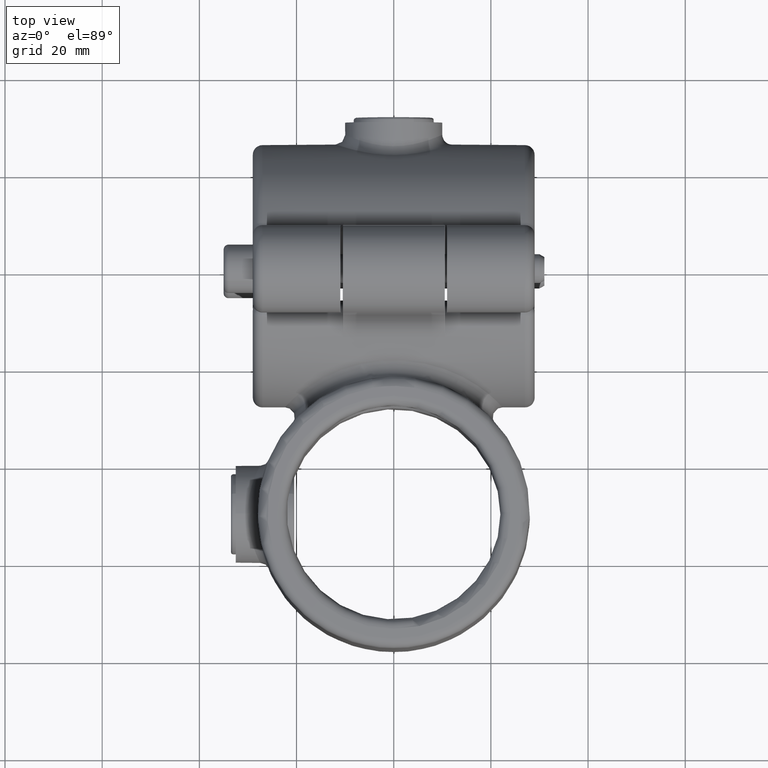
[diagram: clean part render]
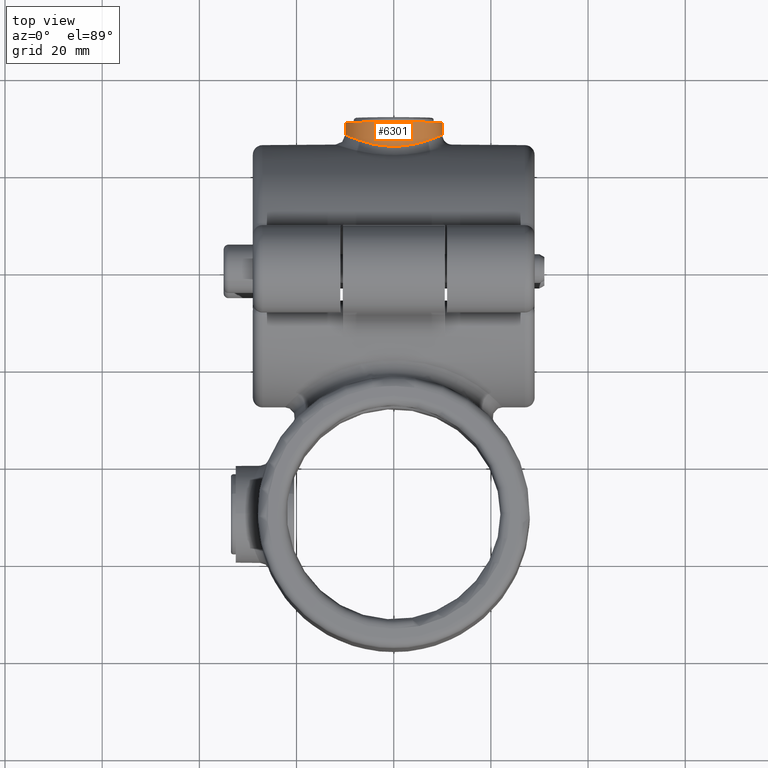
[diagram: same view with one face highlighted and labeled with its STEP entity id]
A machine part, top view. The second image highlights one B-rep face of the part: STEP entity #6301.
In plain terms, the highlighted cylindrical surface (bore or boss wall) has radius 10 mm, axis along (0, -1, -0).
Its self-contained STEP definition (entity closure, byte-faithful):
#8 = CARTESIAN_POINT ( 'NONE',  ( -1.309689247203252860, 37.96141784172954914, 9.919391606581415388 ) ) ;
#88 = CARTESIAN_POINT ( 'NONE',  ( 7.938441882792530713, 36.45113139752252351, -6.116101905805082950 ) ) ;
#119 = DIRECTION ( 'NONE',  ( 0.000000000000000000, 0.000000000000000000, -1.000000000000000000 ) ) ;
#272 = CARTESIAN_POINT ( 'NONE',  ( -6.109971697810090419, 37.09190805875401509, -7.922997076795366134 ) ) ;
#383 = CARTESIAN_POINT ( 'NONE',  ( 9.918017353368624001, 35.53821512939394722, 1.320967487975740040 ) ) ;
#524 = CARTESIAN_POINT ( 'NONE',  ( 7.300952535927495823, 36.69361664208202711, 6.841051327335551768 ) ) ;
#547 = CARTESIAN_POINT ( 'NONE',  ( 9.984147548416729023, 35.50378263958139513, 0.6548443001617316739 ) ) ;
#569 = CARTESIAN_POINT ( 'NONE',  ( 5.314964993036738861, 37.31605801563738822, 8.476805378456095497 ) ) ;
#596 = CARTESIAN_POINT ( 'NONE',  ( 9.868616851915183119, 35.56385626740684103, 1.648968644554943186 ) ) ;
#658 = VERTEX_POINT ( 'NONE', #3142 ) ;
#685 = CARTESIAN_POINT ( 'NONE',  ( 0.000000000000000000, 40.49999999999999289, 0.000000000000000000 ) ) ;
#708 = DIRECTION ( 'NONE',  ( 0.000000000000000000, 0.000000000000000000, 1.000000000000000000 ) ) ;
#917 = CARTESIAN_POINT ( 'NONE',  ( -2.300731756718716881, 37.87522249269908770, -9.737317023272751726 ) ) ;
#971 = CARTESIAN_POINT ( 'NONE',  ( -8.117739778073651991, 36.37533413609669708, 5.848589084603288413 ) ) ;
#1110 = CARTESIAN_POINT ( 'NONE',  ( -9.476407091836007268, 35.76316540894446661, 3.260847091560092448 ) ) ;
#1139 = CARTESIAN_POINT ( 'NONE',  ( 9.481509239164632064, 35.76064407785525390, 3.246023958078927851 ) ) ;
#1168 = CARTESIAN_POINT ( 'NONE',  ( 9.736752403789727950, 35.63130557728579362, -2.303334748292588774 ) ) ;
#1187 = CARTESIAN_POINT ( 'NONE',  ( -9.353615346467616831, 35.82158443888137356, -3.551940586607516881 ) ) ;
#1448 = CARTESIAN_POINT ( 'NONE',  ( -6.850330234620175318, 36.85317948182319014, -7.292221849752663410 ) ) ;
#1557 = CARTESIAN_POINT ( 'NONE',  ( -0.6722428627992788064, 38.00000000000000000, -9.999999999999998224 ) ) ;
#1581 = CARTESIAN_POINT ( 'NONE',  ( 7.931773140455636195, 36.45123628529891135, 6.098549542404117396 ) ) ;
#1717 = CARTESIAN_POINT ( 'NONE',  ( -4.446396089757007175, 37.52380741450293300, 8.963098138692679129 ) ) ;
#1749 = CARTESIAN_POINT ( 'NONE',  ( -9.102254187870251201, 35.94138236538182696, -4.153958435018672901 ) ) ;
#1774 = CARTESIAN_POINT ( 'NONE',  ( 9.460331332209944932, 35.76938803713622406, -3.257395336131244878 ) ) ;
#1797 = CARTESIAN_POINT ( 'NONE',  ( 6.609322447025679281, 36.93427790252186327, -7.511439827525518531 ) ) ;
#1824 = CARTESIAN_POINT ( 'NONE',  ( 6.109485090696208154, 37.09204359159429032, -7.923324013181265890 ) ) ;
#2042 = FACE_OUTER_BOUND ( 'NONE', #4497, .T. ) ;
#2137 = CARTESIAN_POINT ( 'NONE',  ( -7.294447179408561688, 36.69600985286814421, 6.848030707930791827 ) ) ;
#2167 = CARTESIAN_POINT ( 'NONE',  ( -8.656927273380635057, 36.14768293921657261, 5.047017309623420545 ) ) ;
#2203 = CIRCLE ( 'NONE', #3497, 10.00000000000000000 ) ;
#2313 = CARTESIAN_POINT ( 'NONE',  ( -0.6507125025585468459, 37.99244632011206591, 9.984297157078959373 ) ) ;
#2342 = CARTESIAN_POINT ( 'NONE',  ( 10.00035290826392043, 35.49526934371281328, 0.3204783237678224816 ) ) ;
#2372 = CARTESIAN_POINT ( 'NONE',  ( 9.348846845536446182, 35.82389088630297636, -3.564345314593185599 ) ) ;
#2448 = AXIS2_PLACEMENT_3D ( 'NONE', #685, #6058, #119 ) ;
#2496 = CARTESIAN_POINT ( 'NONE',  ( 2.296750397955573675, 37.87565205944397206, -9.738230768107301927 ) ) ;
#2751 = CARTESIAN_POINT ( 'NONE',  ( -10.00065965448310479, 35.49510869375727395, -0.6565994511335063732 ) ) ;
#2879 = CARTESIAN_POINT ( 'NONE',  ( -5.024140197438193844, 37.39006936426124383, 8.652489913737444027 ) ) ;
#2904 = CARTESIAN_POINT ( 'NONE',  ( 3.262553549532621222, 37.75239087059836862, 9.475232163982941103 ) ) ;
#2931 = CARTESIAN_POINT ( 'NONE',  ( 9.999276593506721156, 35.49583303404463663, -0.6734435313070078477 ) ) ;
#2956 = CARTESIAN_POINT ( 'NONE',  ( 8.972346858150652693, 36.00322630647357158, -4.463067477517072668 ) ) ;
#2985 = FACE_OUTER_BOUND ( 'NONE', #6580, .T. ) ;
#3033 = CARTESIAN_POINT ( 'NONE',  ( 5.038627374427861128, 37.39186487346290733, -8.662204715959088475 ) ) ;
#3142 = CARTESIAN_POINT ( 'NONE',  ( 0.000000000000000000, 38.00000000000000000, -10.00000000000000000 ) ) ;
#3210 = CARTESIAN_POINT ( 'NONE',  ( -2.620787607753638504, 37.83715725249804507, -9.656157598189945901 ) ) ;
#3320 = CARTESIAN_POINT ( 'NONE',  ( -4.472373932327593948, 37.52515141544050437, -8.968078233004678879 ) ) ;
#3343 = CARTESIAN_POINT ( 'NONE',  ( -6.111415048024351648, 37.09734150659375018, 7.941681194215473027 ) ) ;
#3441 = VERTEX_POINT ( 'NONE', #6600 ) ;
#3473 = CARTESIAN_POINT ( 'NONE',  ( 1.326195210059761154, 37.96037233877022743, 9.917199928706830647 ) ) ;
#3476 = EDGE_CURVE ( 'NONE', #3441, #3441, #2203, .T. ) ;
#3497 = AXIS2_PLACEMENT_3D ( 'NONE', #5441, #5471, #708 ) ;
#3502 = CARTESIAN_POINT ( 'NONE',  ( 8.972587843338502012, 36.00316742433812323, 4.464118768845735552 ) ) ;
#3527 = CARTESIAN_POINT ( 'NONE',  ( -9.669269734601948940, 35.66580179884326185, 2.633742511570545286 ) ) ;
#3547 = CARTESIAN_POINT ( 'NONE',  ( -9.935335909104695773, 35.52971071590720697, -1.313963366740100502 ) ) ;
#3616 = CARTESIAN_POINT ( 'NONE',  ( 7.528535866952652533, 36.61302306080904856, -6.613151674657159695 ) ) ;
#3727 = ORIENTED_EDGE ( 'NONE', *, *, #3476, .F. ) ;
#3807 = CARTESIAN_POINT ( 'NONE',  ( -7.532233450842789502, 36.61163725221255305, -6.609050957546799943 ) ) ;
#3917 = CARTESIAN_POINT ( 'NONE',  ( -7.925237997354230401, 36.45385297569283267, 6.106980307554967347 ) ) ;
#4054 = CARTESIAN_POINT ( 'NONE',  ( 4.457891034445248479, 37.52129763170660226, 8.957354713216012954 ) ) ;
#4078 = CARTESIAN_POINT ( 'NONE',  ( -4.151386952720911516, 37.58575327551371004, 9.103431682801698344 ) ) ;
#4104 = CARTESIAN_POINT ( 'NONE',  ( 0.008261409789475057316, 38.00781167418099216, 10.01624033118657842 ) ) ;
#4130 = CARTESIAN_POINT ( 'NONE',  ( 4.163745817561869345, 37.58324121140550744, 9.097762957066549916 ) ) ;
#4220 = CARTESIAN_POINT ( 'NONE',  ( 1.329356568174506981, 37.96761504161223399, -9.933056661890860894 ) ) ;
#4497 = EDGE_LOOP ( 'NONE', ( #3727 ) ) ;
#4498 = CARTESIAN_POINT ( 'NONE',  ( -9.982356555497716499, 35.50471990807899658, 0.6805147111678385707 ) ) ;
#4586 = B_SPLINE_CURVE_WITH_KNOTS ( 'NONE', 3,
 ( #5031, #1557, #6790, #917, #3210, #7342, #6229, #3320, #7413, #7320, #272, #4975, #1448, #3807, #5555, #4997, #5113, #5883, #1749, #1187, #5314, #4668, #7038, #3547, #2751, #5667, #4498, #5694, #5264, #3527, #1110, #6989, #2167, #971, #3917, #7438, #2137, #6285, #3343, #4640, #2879, #1717, #4078, #5826, #5853, #7602, #8, #2313, #4104, #6254, #3473, #5244, #6427, #2904, #4130, #4054, #6484, #569, #7572, #6866, #524, #7012, #1581, #6458, #7070, #3502, #1139, #7628, #596, #383, #547, #2342, #2931, #4694, #1168, #5288, #1774, #2372, #2956, #4716, #88, #3616, #6559, #1797, #1824, #7096, #3033, #7194, #4805, #4824, #7150, #2496, #4220, #5924, #5902 ),
 .UNSPECIFIED., .T., .F.,
 ( 4, 2, 2, 2, 2, 2, 2, 2, 2, 2, 2, 2, 2, 2, 2, 2, 2, 2, 2, 2, 2, 2, 2, 2, 1, 2, 2, 2, 2, 2, 2, 2, 2, 2, 2, 2, 2, 2, 2, 2, 2, 2, 2, 2, 2, 2, 2, 4 ),
 ( 0.000000000000000000, 0.001985100746994398254, 0.002977651120491598465, 0.003970201493988797375, 0.005955302240983195196, 0.006947852614480392805, 0.007940402987977587812, 0.009925503734971972622, 0.01091805410846916416, 0.01191060448196635570, 0.01290315485546354897, 0.01389570522896074051, 0.01588080597595512358, 0.01687335634945231685, 0.01786590672294950666, 0.01985100746994389320, 0.02183610821693827628, 0.02282865859043546955, 0.02382120896393265935, 0.02580630971092704937, 0.02679886008442424611, 0.02779141045792143938, 0.02977651120491583633, 0.03076906157841303308, 0.03176161195191023329, 0.03275416232540743350, 0.03374671269890463371, 0.03573181344589902025, 0.03672436381939621353, 0.03771691419289340680, 0.03970201493988780028, 0.04069456531338499355, 0.04168711568688217989, 0.04367221643387656643, 0.04565731718087095298, 0.04664986755436814625, 0.04764241792786533258, 0.04962751867485971913, 0.05062006904835691240, 0.05161261942185410567, 0.05359772016884849222, 0.05558282091584287182, 0.05657537128934006510, 0.05756792166283725143, 0.05955302240983163103, 0.06054557278332881043, 0.06153812315682599676, 0.06352322390382036943 ),
 .UNSPECIFIED. ) ;
#4640 = CARTESIAN_POINT ( 'NONE',  ( -5.304588944385728588, 37.31876406871100471, 8.483292972133179788 ) ) ;
#4668 = CARTESIAN_POINT ( 'NONE',  ( -9.658888682019005856, 35.67078381618819805, -2.610627093446943103 ) ) ;
#4694 = CARTESIAN_POINT ( 'NONE',  ( 9.933358012082980082, 35.53074874531411353, -1.329357719116847969 ) ) ;
#4716 = CARTESIAN_POINT ( 'NONE',  ( 8.665749990198980512, 36.14386104556062662, -5.032925506704184926 ) ) ;
#4805 = CARTESIAN_POINT ( 'NONE',  ( 3.560815021366811717, 37.69640588244313761, -9.350296896245266609 ) ) ;
#4824 = CARTESIAN_POINT ( 'NONE',  ( 3.247945818148111119, 37.74819328057417778, -9.463618949742940600 ) ) ;
#4975 = CARTESIAN_POINT ( 'NONE',  ( -6.611556720304018420, 36.93355453464758398, -7.509524256645753404 ) ) ;
#4997 = CARTESIAN_POINT ( 'NONE',  ( -8.486098659677773881, 36.21973421485506606, -5.300224386092622808 ) ) ;
#5031 = CARTESIAN_POINT ( 'NONE',  ( 5.421010862427522170E-17, 37.99999999999999289, -9.999999999999998224 ) ) ;
#5113 = CARTESIAN_POINT ( 'NONE',  ( -8.654689605853498335, 36.14565099634331347, -5.020160335333447854 ) ) ;
#5244 = CARTESIAN_POINT ( 'NONE',  ( 1.657724027220647933, 37.93655293246845872, 9.867261957122380522 ) ) ;
#5264 = CARTESIAN_POINT ( 'NONE',  ( -9.865330968279232948, 35.56555132265058461, 1.668259299613381375 ) ) ;
#5288 = CARTESIAN_POINT ( 'NONE',  ( 9.654179628713693617, 35.67315048558667456, -2.627795461517560938 ) ) ;
#5314 = CARTESIAN_POINT ( 'NONE',  ( -9.465168138637814366, 35.76701420138491017, -3.243469824121945511 ) ) ;
#5441 = CARTESIAN_POINT ( 'NONE',  ( 0.000000000000000000, 40.49999999999999289, 0.000000000000000000 ) ) ;
#5471 = DIRECTION ( 'NONE',  ( 0.000000000000000000, 1.000000000000000000, 0.000000000000000000 ) ) ;
#5555 = CARTESIAN_POINT ( 'NONE',  ( -7.941332176615190086, 36.44996029493668033, -6.112302289605750616 ) ) ;
#5667 = CARTESIAN_POINT ( 'NONE',  ( -9.999662716467286216, 35.49563081275348253, 0.3432559510086351517 ) ) ;
#5694 = CARTESIAN_POINT ( 'NONE',  ( -9.915109914663961632, 35.53972388436081076, 1.342064846919282406 ) ) ;
#5826 = CARTESIAN_POINT ( 'NONE',  ( -3.247909333023934586, 37.75474194784645476, 9.480348785940979184 ) ) ;
#5853 = CARTESIAN_POINT ( 'NONE',  ( -2.621179063739701220, 37.84501532805300172, 9.673340751537626403 ) ) ;
#5883 = CARTESIAN_POINT ( 'NONE',  ( -8.962442514749145772, 36.00661328941041717, -4.447503359857180705 ) ) ;
#5902 = CARTESIAN_POINT ( 'NONE',  ( 5.421010862427522170E-17, 37.99999999999999289, -9.999999999999998224 ) ) ;
#5924 = CARTESIAN_POINT ( 'NONE',  ( 0.6722428627992693695, 37.99999999999998579, -10.00000000000000000 ) ) ;
#6058 = DIRECTION ( 'NONE',  ( -0.000000000000000000, -1.000000000000000000, -0.000000000000000000 ) ) ;
#6229 = CARTESIAN_POINT ( 'NONE',  ( -3.566872857526240725, 37.69535131573702813, -9.347970740444504045 ) ) ;
#6254 = CARTESIAN_POINT ( 'NONE',  ( 0.6672297265862191518, 37.99192378165891171, 9.983208534989536531 ) ) ;
#6285 = CARTESIAN_POINT ( 'NONE',  ( -6.608231870918059414, 36.93863446197503464, 7.533207050118894799 ) ) ;
#6301 = ADVANCED_FACE ( 'NONE', ( #2985, #2042 ), #7480, .T. ) ;
#6427 = CARTESIAN_POINT ( 'NONE',  ( 2.636943987532264888, 37.84299860761175438, 9.669030785462085831 ) ) ;
#6458 = CARTESIAN_POINT ( 'NONE',  ( 8.124548454382439999, 36.37252927629253207, 5.839171414078356825 ) ) ;
#6484 = CARTESIAN_POINT ( 'NONE',  ( 5.033729703162222791, 37.38769281553949497, 8.646881588692124865 ) ) ;
#6523 = ORIENTED_EDGE ( 'NONE', *, *, #7109, .T. ) ;
#6559 = CARTESIAN_POINT ( 'NONE',  ( 6.847544234825296172, 36.85412791350024264, -7.294812869095006924 ) ) ;
#6580 = EDGE_LOOP ( 'NONE', ( #6523 ) ) ;
#6600 = CARTESIAN_POINT ( 'NONE',  ( 0.000000000000000000, 40.49999999999999289, 10.00000000000000000 ) ) ;
#6790 = CARTESIAN_POINT ( 'NONE',  ( -1.331131931580306071, 37.96754768191181739, -9.932921297035077757 ) ) ;
#6866 = CARTESIAN_POINT ( 'NONE',  ( 6.617402020943749186, 36.93557395333353099, 7.524995367017322856 ) ) ;
#6989 = CARTESIAN_POINT ( 'NONE',  ( -8.965766612708357286, 36.00632598047051403, 4.477772233061862117 ) ) ;
#7012 = CARTESIAN_POINT ( 'NONE',  ( 7.519642989446928993, 36.61193384216640112, 6.600022801784291460 ) ) ;
#7038 = CARTESIAN_POINT ( 'NONE',  ( -9.740651051028006435, 35.62932426821269161, -2.286715317016326132 ) ) ;
#7070 = CARTESIAN_POINT ( 'NONE',  ( 8.664080321766679305, 36.14451904327400200, 5.034933340210877795 ) ) ;
#7096 = CARTESIAN_POINT ( 'NONE',  ( 5.846980009227154440, 37.16985590555464114, -8.119003255423503873 ) ) ;
#7109 = EDGE_CURVE ( 'NONE', #658, #658, #4586, .T. ) ;
#7150 = CARTESIAN_POINT ( 'NONE',  ( 2.615979606593153317, 37.83775057536240638, -9.657426487499053636 ) ) ;
#7194 = CARTESIAN_POINT ( 'NONE',  ( 4.467881715538400300, 37.52616164785070652, -8.970387708079240241 ) ) ;
#7320 = CARTESIAN_POINT ( 'NONE',  ( -5.848103982835761272, 37.16952173907397139, -8.118161972908930935 ) ) ;
#7342 = CARTESIAN_POINT ( 'NONE',  ( -3.254577084970458500, 37.74716391681283056, -9.461375969911649975 ) ) ;
#7413 = CARTESIAN_POINT ( 'NONE',  ( -5.041848172015885865, 37.39103099174829481, -8.660211490495859366 ) ) ;
#7438 = CARTESIAN_POINT ( 'NONE',  ( -7.514053691371970878, 36.61404265658559609, 6.606330518128099349 ) ) ;
#7480 = CYLINDRICAL_SURFACE ( 'NONE', #2448, 10.00000000000000000 ) ;
#7572 = CARTESIAN_POINT ( 'NONE',  ( 6.121724520496780286, 37.09422085030949034, 7.933777038766662848 ) ) ;
#7602 = CARTESIAN_POINT ( 'NONE',  ( -1.641110308883799052, 37.93787523661466565, 9.870044690829002931 ) ) ;
#7628 = CARTESIAN_POINT ( 'NONE',  ( 9.673553415225496721, 35.66364006613198967, 2.618615849126812556 ) ) ;